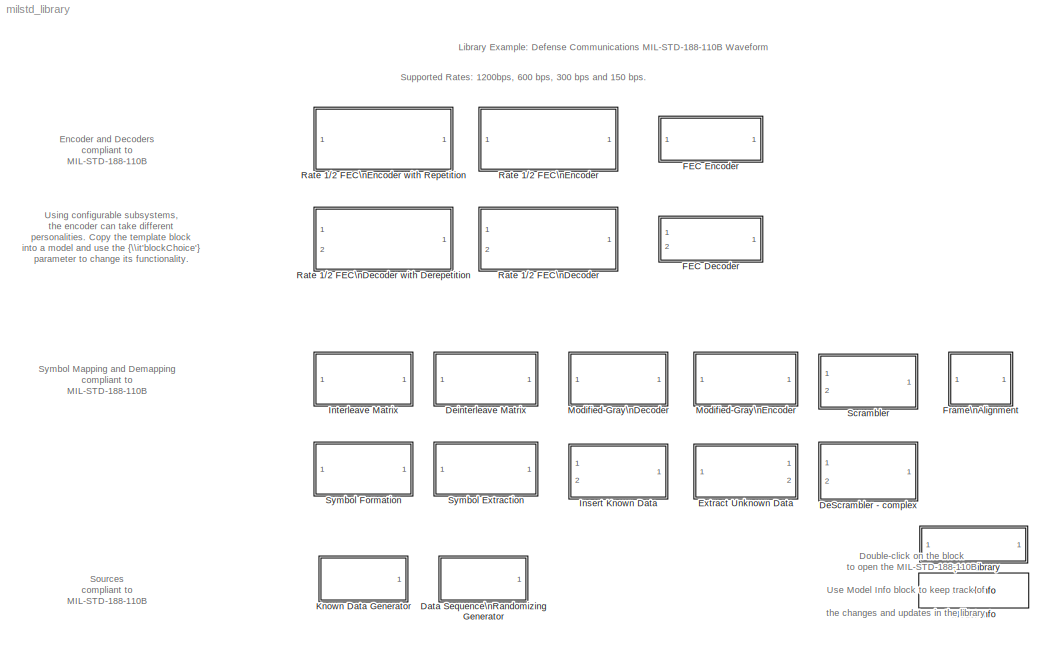
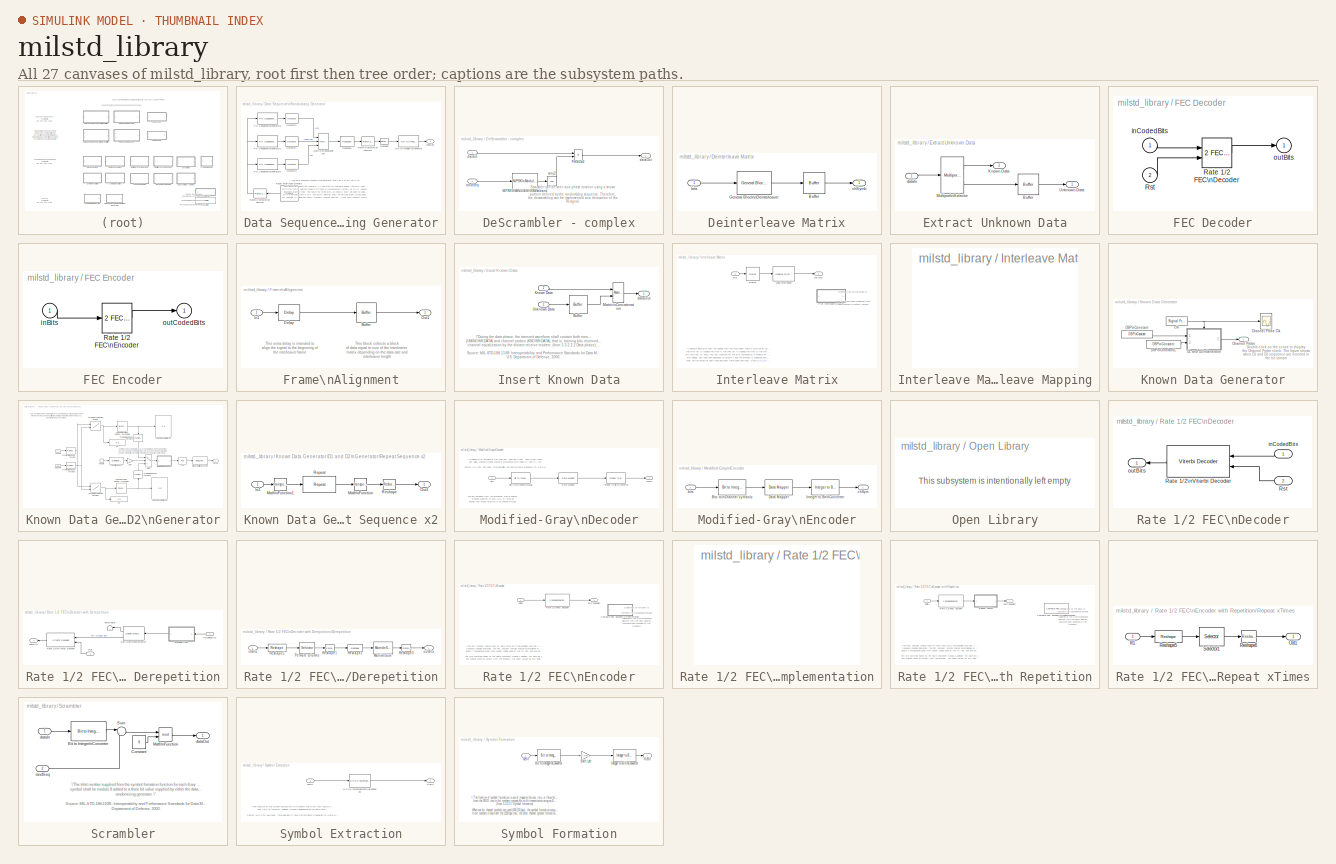
[diagram: thumbnail index - all 27 canvases of the model, root first then tree order]
MODEL milstd_library
KIND library
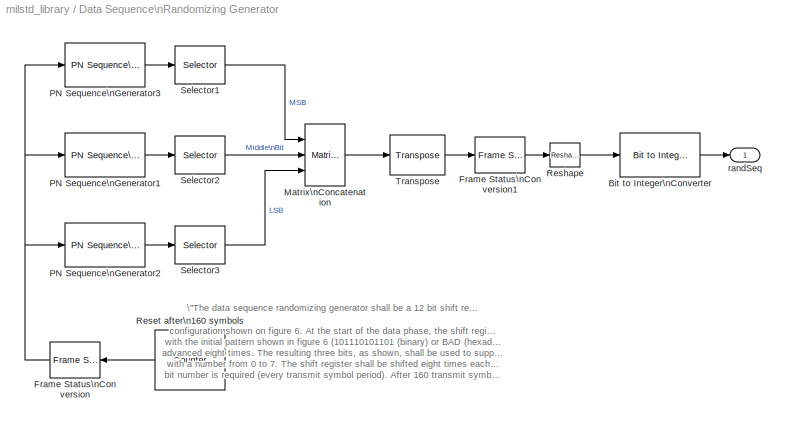
BLOCK [SubSystem] Data Sequence\nRandomizing Generator
  MinAlgLoopOccurrences = off
  Ports = [0, 1]
  PropExecContextAcrossSSBoundary = on
  RTWSystemCode = Auto
  TreatAsAtomicUnit = off
BLOCK [Reference] Data Sequence\nRandomizing Generator/Bit to Integer\nConverter  REF=commutil2/Bit to Integer\nConverter
  Ports = [1, 1]
  SourceBlock = commutil2/Bit to Integer\nConverter
  SourceType = Bit to Integer Converter
  nbits = 3
BLOCK [Reference] Data Sequence\nRandomizing Generator/Frame Status\nConversion  REF=dspsigattribs/Frame Status\nConversion
  Ports = [1, 1]
  ShowPortLabels = off
  SourceBlock = dspsigattribs/Frame Status\nConversion
  SourceType = Frame Status Conversion
  growRefPort = off
  outframe = Frame-based
BLOCK [Reference] Data Sequence\nRandomizing Generator/Frame Status\nConversion1  REF=dspsigattribs/Frame Status\nConversion
  Ports = [1, 1]
  ShowPortLabels = off
  SourceBlock = dspsigattribs/Frame Status\nConversion
  SourceType = Frame Status Conversion
  growRefPort = off
  outframe = Frame-based
BLOCK [Reference] Data Sequence\nRandomizing Generator/Matrix\nConcatenation  REF=simulink/Math\nOperations/Matrix\nConcatenation
  Ports = [3, 1]
  SourceBlock = simulink/Math\nOperations/Matrix\nConcatenation
  SourceType = Matrix Concatenation
  catMethod = Horizontal
  numInports = 3
BLOCK [Reference] Data Sequence\nRandomizing Generator/PN Sequence\nGenerator1  REF=commseqgen2/PN Sequence\nGenerator
  Ports = [1, 1]
  SourceBlock = commseqgen2/PN Sequence\nGenerator
  SourceType = PN Sequence Generator
  Ts = 1/2400/8
  frameBased = on
  ini_sta = [zeros(1,11) 1]
  poly = [12 6 4 1 0]
  reset = on
  sampPerFrame = 40*8
  shift = 3664
BLOCK [Reference] Data Sequence\nRandomizing Generator/PN Sequence\nGenerator2  REF=commseqgen2/PN Sequence\nGenerator
  Ports = [1, 1]
  SourceBlock = commseqgen2/PN Sequence\nGenerator
  SourceType = PN Sequence Generator
  Ts = 1/2400/8
  frameBased = on
  ini_sta = [zeros(1,11) 1]
  poly = [12 6 4 1 0]
  reset = on
  sampPerFrame = 40*8
  shift = 1506
BLOCK [Reference] Data Sequence\nRandomizing Generator/PN Sequence\nGenerator3  REF=commseqgen2/PN Sequence\nGenerator
  Ports = [1, 1]
  SourceBlock = commseqgen2/PN Sequence\nGenerator
  SourceType = PN Sequence Generator
  Ts = 1/2400/8
  frameBased = on
  ini_sta = [zeros(1,11) 1]
  poly = [12 6 4 1 0]
  reset = on
  sampPerFrame = 40*8
  shift = 3663
BLOCK [Reference] Data Sequence\nRandomizing Generator/Reset after\n160 symbols  REF=dspswit3/Counter
  CntDtype = double
  CountEvent = Free running
  CounterSize = User defined
  Direction = Down
  HitDtype = Logical
  HitValue = 1
  InitialCount = 160/40+1
  MaxCount = 160/40+1
  Output = Hit
  Ports = [0, 1]
  ResetInput = off
  SamplesPerFrame = 1
  SourceBlock = dspswit3/Counter
  SourceType = Counter
  Ts = 40/2400
BLOCK [Reference] Data Sequence\nRandomizing Generator/Reshape  REF=simulink/Math\nOperations/Reshape
  OutputDimensionality = Column vector
  OutputDimensions = [1,1]
  Ports = [1, 1]
  SourceBlock = simulink/Math\nOperations/Reshape
  SourceType = Reshape
BLOCK [Selector] Data Sequence\nRandomizing Generator/Selector1
  Elements = [8:8:40*8]
  InputPortWidth = 40*8
  Ports = [1, 1]
BLOCK [Selector] Data Sequence\nRandomizing Generator/Selector2
  Elements = [8:8:40*8]
  InputPortWidth = 40*8
  Ports = [1, 1]
BLOCK [Selector] Data Sequence\nRandomizing Generator/Selector3
  Elements = [8:8:40*8]
  InputPortWidth = 40*8
  Ports = [1, 1]
BLOCK [Reference] Data Sequence\nRandomizing Generator/Transpose  REF=dspmtrx3/Transpose
  Hermitian = off
  Ports = [1, 1]
  SourceBlock = dspmtrx3/Transpose
  SourceType = Transpose
  overflowFlag = on
BLOCK [Outport] Data Sequence\nRandomizing Generator/randSeq
  BusOutputAsStruct = off
  IconDisplay = Port number
BLOCK [SubSystem] DeScrambler - complex
  MaskDisplay = disp('Descrambler\\n')\nport_label('input',1,'');\nport_label('input',2,'rndSeq');
  MaskIconFrame = on
  MaskIconOpaque = on
  MaskIconRotate = none
  MaskIconUnits = autoscale
  MinAlgLoopOccurrences = off
  Ports = [2, 1]
  PropExecContextAcrossSSBoundary = on
  RTWSystemCode = Auto
  TreatAsAtomicUnit = off
BLOCK [Reference] DeScrambler - complex/M-PSK\nModulator\nBaseband  REF=commdigbbndpm2/M-PSK\nModulator\nBaseband
  Enc = Binary
  InType = Integer
  M = 8
  Ph = 0
  Ports = [1, 1]
  SourceBlock = commdigbbndpm2/M-PSK\nModulator\nBaseband
  SourceType = M-PSK Modulator Baseband
  numSamp = 1
BLOCK [Product] DeScrambler - complex/Product2
  Ports = [2, 1]
  RndMeth = Floor
BLOCK [Math] DeScrambler - complex/conj2
  Operator = conj
  Ports = [1, 1]
BLOCK [Inport] DeScrambler - complex/dataIn
  IconDisplay = Port number
  LatchInput = off
BLOCK [Outport] DeScrambler - complex/dataOut
  BusOutputAsStruct = off
  IconDisplay = Port number
BLOCK [Inport] DeScrambler - complex/randSeq
  IconDisplay = Port number
  LatchInput = off
  Port = 2
BLOCK [SubSystem] Deinterleave Matrix
  MaskDisplay = disp('Deinterleave\\nMatrix')
  MaskIconFrame = on
  MaskIconOpaque = on
  MaskIconRotate = none
  MaskIconUnits = autoscale
  MinAlgLoopOccurrences = off
  Ports = [1, 1]
  PropExecContextAcrossSSBoundary = on
  RTWSystemCode = Auto
  TreatAsAtomicUnit = off
BLOCK [Reference] Deinterleave Matrix/Buffer  REF=dspbuff3/Buffer
  N = milstd.rate*milstd.repFactor*2*0.2
  Ports = [1, 1]
  SourceBlock = dspbuff3/Buffer
  SourceType = Buffer
  V = 0
  ic = 0
BLOCK [Reference] Deinterleave Matrix/General Block\nDeinterleaver  REF=commblkintrlv2/General Block\nDeinterleaver
  Ports = [1, 1]
  SourceBlock = commblkintrlv2/General Block\nDeinterleaver
  SourceType = General Block Deinterleaver
  elements = milstd.interTable %Column vector
BLOCK [Inport] Deinterleave Matrix/bits
  IconDisplay = Port number
  LatchInput = off
BLOCK [Outport] Deinterleave Matrix/chSymb
  BusOutputAsStruct = off
  IconDisplay = Port number
BLOCK [SubSystem] Extract Unknown Data
  MaskDisplay = disp('Extract\\nUnknown Data')
  MaskIconFrame = on
  MaskIconOpaque = on
  MaskIconRotate = none
  MaskIconUnits = autoscale
  MinAlgLoopOccurrences = off
  Ports = [1, 2]
  PropExecContextAcrossSSBoundary = on
  RTWSystemCode = Auto
  TreatAsAtomicUnit = off
BLOCK [Reference] Extract Unknown Data/Buffer  REF=dspbuff3/Buffer
  N = milstd.rate*2*milstd.interl*milstd.repFactor*3/milstd.bitsToSym
  Ports = [1, 1]
  SourceBlock = dspbuff3/Buffer
  SourceType = Buffer
  V = 0
  ic = 0
BLOCK [Outport] Extract Unknown Data/Known Data
  BusOutputAsStruct = off
  IconDisplay = Port number
  Port = 2
BLOCK [Reference] Extract Unknown Data/Multiport\nSelector  REF=dspindex/Multiport\nSelector
  Ports = [1, 2]
  SourceBlock = dspindex/Multiport\nSelector
  SourceType = Multiport Selector
  idxCellArray = { [1:60],[61:120]}
  idxErrMode = Clip Index
  rowsOrCols = Rows
BLOCK [Outport] Extract Unknown Data/Unknown Data
  BusOutputAsStruct = off
  IconDisplay = Port number
BLOCK [Inport] Extract Unknown Data/dataIn
  IconDisplay = Port number
  LatchInput = off
BLOCK [SubSystem] FEC Decoder
  BlockChoice = Rate 1/2 FEC Decoder
  MemberBlocks = Rate 1/2 FEC Decoder,Rate 1/2 FEC Decoder with Derepetition
  MinAlgLoopOccurrences = off
  Ports = [2, 1]
  PropExecContextAcrossSSBoundary = on
  RTWSystemCode = Auto
  ShowPortLabels = off
  TemplateBlock = self
  TreatAsAtomicUnit = off
BLOCK [Reference] FEC Decoder/Rate 1//2 FEC\nDecoder  REF=milstd_library/Rate 1//2 FEC\nDecoder  (lib defined in mdl_f392efc64685)
  Ports = [2, 1]
  SourceBlock = milstd_library/Rate 1//2 FEC\nDecoder
  SourceType = Unknown
BLOCK [Inport] FEC Decoder/Rst
  IconDisplay = Port number
  LatchInput = off
  Port = 2
BLOCK [Inport] FEC Decoder/inCodedBits
  IconDisplay = Port number
  LatchInput = off
BLOCK [Outport] FEC Decoder/outBits
  BusOutputAsStruct = off
  IconDisplay = Port number
BLOCK [SubSystem] FEC Encoder
  BlockChoice = Rate 1/2 FEC Encoder
  MemberBlocks = Rate 1/2 FEC Encoder,Rate 1/2 FEC Encoder with Repetition
  MinAlgLoopOccurrences = off
  Ports = [1, 1]
  PropExecContextAcrossSSBoundary = on
  RTWSystemCode = Auto
  ShowPortLabels = off
  TemplateBlock = self
  TreatAsAtomicUnit = off
BLOCK [Reference] FEC Encoder/Rate 1//2 FEC\nEncoder  REF=milstd_library/Rate 1//2 FEC\nEncoder  (lib defined in mdl_f392efc64685)
  Ports = [1, 1]
  SourceBlock = milstd_library/Rate 1//2 FEC\nEncoder
  SourceType = Unknown
BLOCK [Inport] FEC Encoder/inBits
  IconDisplay = Port number
  LatchInput = off
BLOCK [Outport] FEC Encoder/outCodedBits
  BusOutputAsStruct = off
  IconDisplay = Port number
BLOCK [SubSystem] Frame\nAlignment
  MaskDisplay = disp('Frame\\nAlignment')
  MaskIconFrame = on
  MaskIconOpaque = on
  MaskIconRotate = none
  MaskIconUnits = autoscale
  MinAlgLoopOccurrences = off
  Ports = [1, 1]
  PropExecContextAcrossSSBoundary = on
  RTWSystemCode = Auto
  TreatAsAtomicUnit = off
BLOCK [Reference] Frame\nAlignment/Buffer  REF=dspbuff3/Buffer
  N = 1200*milstd.interl
  Ports = [1, 1]
  SourceBlock = dspbuff3/Buffer
  SourceType = Buffer
  V = 0
  ic = 0
BLOCK [Reference] Frame\nAlignment/Delay  REF=dspsigops/Delay
  Ports = [1, 1]
  SourceBlock = dspsigops/Delay
  SourceType = Delay
  delay = 1200*milstd.interl-20
  dif_ic_for_ch = off
  dif_ic_for_dly = off
  dly_unit = Samples
  ic = 0
  ic_detail = off
  reset_popup = None
BLOCK [Inport] Frame\nAlignment/In1
  IconDisplay = Port number
  LatchInput = off
BLOCK [Outport] Frame\nAlignment/Out1
  BusOutputAsStruct = off
  IconDisplay = Port number
BLOCK [SubSystem] Insert Known Data
  MaskDisplay = disp('Insert\\nKnown Data')
  MaskIconFrame = on
  MaskIconOpaque = on
  MaskIconRotate = none
  MaskIconUnits = autoscale
  MinAlgLoopOccurrences = off
  Ports = [2, 1]
  PropExecContextAcrossSSBoundary = on
  RTWSystemCode = Auto
  TreatAsAtomicUnit = off
BLOCK [Reference] Insert Known Data/Buffer  REF=dspbuff3/Buffer
  N = 20*3
  Ports = [1, 1]
  SourceBlock = dspbuff3/Buffer
  SourceType = Buffer
  V = 0
  ic = 0
BLOCK [Inport] Insert Known Data/Known Data
  IconDisplay = Port number
  LatchInput = off
  Port = 2
BLOCK [Reference] Insert Known Data/Matrix\nConcatenation  REF=simulink/Math\nOperations/Matrix\nConcatenation
  Ports = [2, 1]
  SourceBlock = simulink/Math\nOperations/Matrix\nConcatenation
  SourceType = Matrix Concatenation
  catMethod = Vertical
  numInports = 2
BLOCK [Inport] Insert Known Data/Unknown Data
  IconDisplay = Port number
  LatchInput = off
BLOCK [Outport] Insert Known Data/dataOut
  BusOutputAsStruct = off
  IconDisplay = Port number
BLOCK [SubSystem] Interleave Matrix
  MaskDisplay = disp('Interleave\\nMatrix')
  MaskIconFrame = on
  MaskIconOpaque = on
  MaskIconRotate = none
  MaskIconUnits = autoscale
  MinAlgLoopOccurrences = off
  Ports = [1, 1]
  PropExecContextAcrossSSBoundary = on
  RTWSystemCode = Auto
  TreatAsAtomicUnit = off
BLOCK [Reference] Interleave Matrix/Buffer  REF=dspbuff3/Buffer
  N = milstd.rate*milstd.interl*milstd.repFactor*2 % x2 because of coding rate
  Ports = [1, 1]
  SourceBlock = dspbuff3/Buffer
  SourceType = Buffer
  V = 0
  ic = 0
BLOCK [Reference] Interleave Matrix/Long Interleaver  REF=commblkintrlv2/General Block\nInterleaver
  Ports = [1, 1]
  SourceBlock = commblkintrlv2/General Block\nInterleaver
  SourceType = General Block Interleaver
  elements = milstd.interTable %Column vector
BLOCK [SubSystem] Interleave Matrix/Plot Interleave Mapping
  MaskDisplay = disp('Interleave\\nMapping')
  MaskIconFrame = on
  MaskIconOpaque = on
  MaskIconRotate = none
  MaskIconUnits = autoscale
  MinAlgLoopOccurrences = off
  OpenFcn = figure;                                          \nnumRow = 40;                                     \nnumCol = length(milstd.interTable)/numRow;       \nplot([0:numRow*numCol-1],milstd.interTable,'b.');\naxis([0 numRow*numCol-1 0 numRow*numCol-1]);     \ntitle('Interleaver Mapping');                    \nxlabel('Input index');                           \nylabel('Output index');
  Ports = []
  PropExecContextAcrossSSBoundary = on
  RTWSystemCode = Auto
  TreatAsAtomicUnit = off
BLOCK [Inport] Interleave Matrix/bits
  IconDisplay = Port number
  LatchInput = off
BLOCK [Outport] Interleave Matrix/chSymb
  BusOutputAsStruct = off
  IconDisplay = Port number
BLOCK [SubSystem] Known Data Generator
  MinAlgLoopOccurrences = off
  Ports = [0, 1]
  PropExecContextAcrossSSBoundary = on
  RTWSystemCode = Auto
  TreatAsAtomicUnit = off
BLOCK [Outport] Known Data Generator/Channel Probe
  BusOutputAsStruct = off
  IconDisplay = Port number
BLOCK [Scope] Known Data Generator/Channel Probe Clk
  DataFormat = Structure
  NumInputPorts = 1
  Ports = [1]
  TimeRange = 19.2
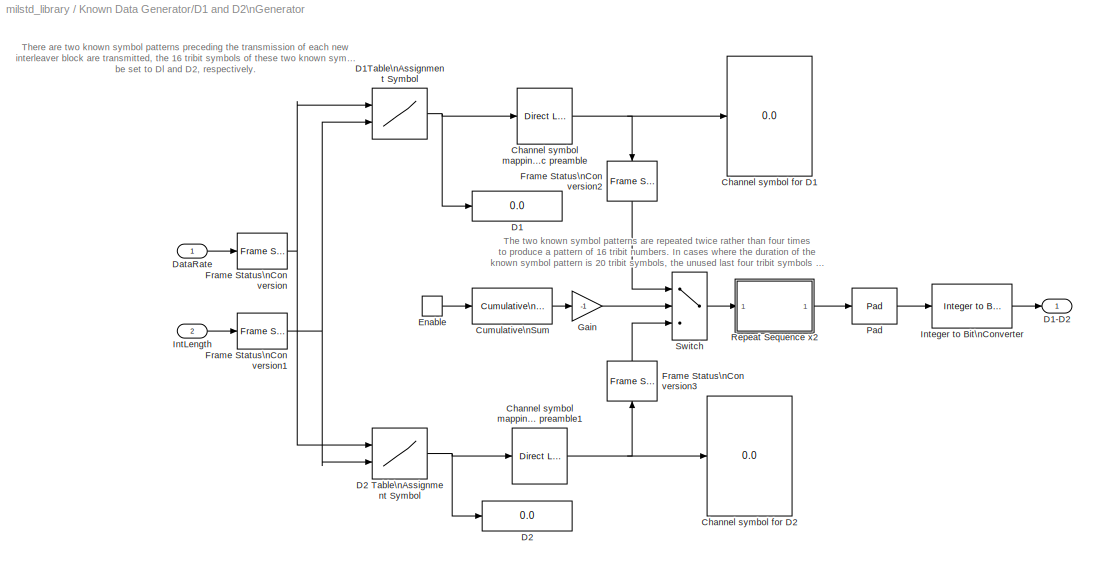
BLOCK [SubSystem] Known Data Generator/D1 and D2\nGenerator
  MaskIconFrame = on
  MaskIconOpaque = on
  MaskIconRotate = none
  MaskIconUnits = autoscale
  MaskInitialization = % Loads lookup table for D1 and D2 bits in preamble sequence\n% according to MIL-STD-188-110B TABLE XV\n% D1 Lookup table:\nD1Table = ones(7,2);\nD1Table(:,1) = [ 7 6 6 6 6 7 7]';\nD1Table(:,2) = [ 0 4 4 4 4 5 5]';\n\n% D1 Lookup table:\nD2Table = ones(7,2);\nD2Table(:,1) = [6 4 5 6 7 4 5]';\nD2Table(:,2) = [0 4 5 6 7 4 5]';\n\n
  MinAlgLoopOccurrences = off
  Ports = [2, 1, 1]
  PropExecContextAcrossSSBoundary = on
  RTWSystemCode = Auto
  TreatAsAtomicUnit = off
BLOCK [Display] Known Data Generator/D1 and D2\nGenerator/Channel symbol for D1
  Decimation = 1
  Ports = [1]
BLOCK [Display] Known Data Generator/D1 and D2\nGenerator/Channel symbol for D2
  Decimation = 1
  Ports = [1]
BLOCK [Reference] Known Data Generator/D1 and D2\nGenerator/Channel symbol mapping\nfor sync preamble  REF=simulink/Look-Up\nTables/Direct Look-Up\nTable (n-D)
  Ports = [1, 1]
  SourceBlock = simulink/Look-Up\nTables/Direct Look-Up\nTable (n-D)
  SourceType = LookupNDDirect
  clipFlag = Error
  explicitNumDims = 1
  maskTabDims = 2
  mxTable = milstd.chSymMapping
  outDims = Column
  tabIsInput = off
BLOCK [Reference] Known Data Generator/D1 and D2\nGenerator/Channel symbol mapping\nfor sync preamble1  REF=simulink/Look-Up\nTables/Direct Look-Up\nTable (n-D)
  Ports = [1, 1]
  SourceBlock = simulink/Look-Up\nTables/Direct Look-Up\nTable (n-D)
  SourceType = LookupNDDirect
  clipFlag = Warning
  explicitNumDims = 1
  maskTabDims = 2
  mxTable = milstd.chSymMapping
  outDims = Column
  tabIsInput = off
BLOCK [Reference] Known Data Generator/D1 and D2\nGenerator/Cumulative\nSum  REF=dspmathops/Cumulative\nSum
  Ports = [1, 1]
  SourceBlock = dspmathops/Cumulative\nSum
  SourceType = Cumulative Sum
  dim = Channels (running sum)
  reset_popup = None
BLOCK [Display] Known Data Generator/D1 and D2\nGenerator/D1
  Decimation = 1
  Ports = [1]
BLOCK [Outport] Known Data Generator/D1 and D2\nGenerator/D1-D2
  BusOutputAsStruct = off
  IconDisplay = Port number
  InitialOutput = 0
  OutputWhenDisabled = reset
BLOCK [Lookup2D] Known Data Generator/D1 and D2\nGenerator/D1Table\nAssignment Symbol
  ColumnIndex = [1:2]
  DialogController = Simulink.DDGSource
  InputSameDT = off
  OutputValues = milstd.D1Table
  RowIndex = [1:7]
BLOCK [Display] Known Data Generator/D1 and D2\nGenerator/D2
  Decimation = 1
  Ports = [1]
BLOCK [Lookup2D] Known Data Generator/D1 and D2\nGenerator/D2 Table\nAssignment Symbol
  ColumnIndex = [1:2]
  DialogController = Simulink.DDGSource
  InputSameDT = off
  OutputValues = milstd.D2Table
  RowIndex = [1:7]
BLOCK [Inport] Known Data Generator/D1 and D2\nGenerator/DataRate
  IconDisplay = Port number
  LatchInput = off
BLOCK [EnablePort] Known Data Generator/D1 and D2\nGenerator/Enable
  Ports = [0, 1]
  ShowOutputPort = on
  StatesWhenEnabling = reset
BLOCK [Reference] Known Data Generator/D1 and D2\nGenerator/Frame Status\nConversion  REF=dspsigattribs/Frame Status\nConversion
  Ports = [1, 1]
  SourceBlock = dspsigattribs/Frame Status\nConversion
  SourceType = Frame Status Conversion
  growRefPort = off
  outframe = Sample-based
BLOCK [Reference] Known Data Generator/D1 and D2\nGenerator/Frame Status\nConversion1  REF=dspsigattribs/Frame Status\nConversion
  Ports = [1, 1]
  SourceBlock = dspsigattribs/Frame Status\nConversion
  SourceType = Frame Status Conversion
  growRefPort = off
  outframe = Sample-based
BLOCK [Reference] Known Data Generator/D1 and D2\nGenerator/Frame Status\nConversion2  REF=dspsigattribs/Frame Status\nConversion
  Ports = [1, 1]
  SourceBlock = dspsigattribs/Frame Status\nConversion
  SourceType = Frame Status Conversion
  growRefPort = off
  outframe = Frame-based
BLOCK [Reference] Known Data Generator/D1 and D2\nGenerator/Frame Status\nConversion3  REF=dspsigattribs/Frame Status\nConversion
  Ports = [1, 1]
  SourceBlock = dspsigattribs/Frame Status\nConversion
  SourceType = Frame Status Conversion
  growRefPort = off
  outframe = Frame-based
BLOCK [Gain] Known Data Generator/D1 and D2\nGenerator/Gain
  Gain = -1
BLOCK [Inport] Known Data Generator/D1 and D2\nGenerator/IntLength
  IconDisplay = Port number
  LatchInput = off
  Port = 2
BLOCK [Reference] Known Data Generator/D1 and D2\nGenerator/Integer to Bit\nConverter  REF=commutil2/Integer to Bit\nConverter
  Ports = [1, 1]
  SourceBlock = commutil2/Integer to Bit\nConverter
  SourceType = Integer to Bit Converter
  nbits = 3
BLOCK [Reference] Known Data Generator/D1 and D2\nGenerator/Pad  REF=dspsigops/Pad
  Ports = [1, 1]
  SourceBlock = dspsigops/Pad
  SourceType = Pad
  numOutCols = 1
  numOutRows = 20
  padAlong = Columns
  padNumOutColsSpecMethod = User-specified
  padNumOutRowsSpecMethod = User-specified
  padSigAt = End
  padVal = 0
  trunc_flag = None
BLOCK [SubSystem] Known Data Generator/D1 and D2\nGenerator/Repeat Sequence x2
  MaskDisplay = disp('Repeat\\nSequence x2')
  MaskIconFrame = on
  MaskIconOpaque = on
  MaskIconRotate = none
  MaskIconUnits = autoscale
  MinAlgLoopOccurrences = off
  Ports = [1, 1]
  PropExecContextAcrossSSBoundary = on
  RTWSystemCode = Auto
  TreatAsAtomicUnit = off
BLOCK [Inport] Known Data Generator/D1 and D2\nGenerator/Repeat Sequence x2/In1
  IconDisplay = Port number
  LatchInput = off
BLOCK [Math] Known Data Generator/D1 and D2\nGenerator/Repeat Sequence x2/Math\nFunction
  Operator = transpose
  Ports = [1, 1]
BLOCK [Math] Known Data Generator/D1 and D2\nGenerator/Repeat Sequence x2/Math\nFunction1
  Operator = transpose
  Ports = [1, 1]
BLOCK [Outport] Known Data Generator/D1 and D2\nGenerator/Repeat Sequence x2/Out1
  BusOutputAsStruct = off
  IconDisplay = Port number
BLOCK [Reference] Known Data Generator/D1 and D2\nGenerator/Repeat Sequence x2/Repeat  REF=dspsigops/Repeat
  N = 2
  Ports = [1, 1]
  SourceBlock = dspsigops/Repeat
  SourceType = Repeat
  ic = 0
  mode = Maintain input frame rate
BLOCK [Reference] Known Data Generator/D1 and D2\nGenerator/Repeat Sequence x2/Reshape  REF=simulink/Math\nOperations/Reshape
  OutputDimensionality = Column vector
  OutputDimensions = [1,1]
  Ports = [1, 1]
  SourceBlock = simulink/Math\nOperations/Reshape
  SourceType = Reshape
BLOCK [Switch] Known Data Generator/D1 and D2\nGenerator/Switch
  InputSameDT = off
  Threshold = -1.5
BLOCK [Reference] Known Data Generator/DSP\nConstant  REF=dspsrcs4/DSP\nConstant
  FramebasedOutput = -inf
  InterpretAs1D = -inf
  Ports = [0, 1]
  SampleMode = Discrete
  ShowPortLabels = on
  SourceBlock = dspsrcs4/DSP\nConstant
  SourceType = DSP Constant
  Ts = -inf
  Value = milstd.idxRate
  additionalParams = off
  allowOverrides = on
  continuousOutput = Sample-based
  dataType = Inherit from 'Constant value'
  discreteOutput = Frame-based
  fracBitsMode = Best precision
  framePeriod = 20/1200
  numFracBits = 15
  sampTime = 1
  udDataType = sfix(16)
  wordLen = 16
BLOCK [Reference] Known Data Generator/DSP\nConstant1  REF=dspsrcs4/DSP\nConstant
  FramebasedOutput = -inf
  InterpretAs1D = -inf
  Ports = [0, 1]
  SampleMode = Discrete
  ShowPortLabels = on
  SourceBlock = dspsrcs4/DSP\nConstant
  SourceType = DSP Constant
  Ts = -inf
  Value = milstd.idxInterl
  additionalParams = off
  allowOverrides = on
  continuousOutput = Sample-based
  dataType = Inherit from 'Constant value'
  discreteOutput = Frame-based
  fracBitsMode = Best precision
  framePeriod = 20/1200
  numFracBits = 15
  sampTime = 1
  udDataType = sfix(16)
  wordLen = 16
BLOCK [Reference] Known Data Generator/clk  REF=dspsrcs4/Signal From\nWorkspace
  OutputAfterFinalValue = Cyclic repetition
  Ports = [0, 1]
  ShowPortLabels = on
  SourceBlock = dspsrcs4/Signal From\nWorkspace
  SourceType = Signal From Workspace
  Ts = 20/1200
  X = [1 1 zeros(1,1200*milstd.rate/20-2)]  %Channel rate is equal to 1200
  nsamps = 1
BLOCK [Reference] Model Info  REF=simulink/Model-Wide\nUtilities/Model Info
  BlockCM = None
  DisplayStringWithTags = Model Info\nModel version: %<ModelVersion>
  Frame = on
  HorizontalTextAlignment = Center
  InitialBlockCM = None
  LeftAlignmentValue = 0.5
  MaskDisplayString = Model Info\\nModel version: 2.84
  Ports = []
  ShowPortLabels = on
  SourceBlock = simulink/Model-Wide\nUtilities/Model Info
  SourceBlockDiagram = milstd_library
  SourceType = CMBlock
  TagMaxNumber = 20
BLOCK [SubSystem] Modified-Gray\nDecoder
  MaskDisplay = disp('Bits to\\nChannel\\nSymbols')
  MaskIconFrame = on
  MaskIconOpaque = on
  MaskIconRotate = none
  MaskIconUnits = autoscale
  MinAlgLoopOccurrences = off
  Ports = [1, 1]
  PropExecContextAcrossSSBoundary = on
  RTWSystemCode = Auto
  TreatAsAtomicUnit = off
BLOCK [Reference] Modified-Gray\nDecoder/Bits to\nChannel symbols  REF=commutil2/Bit to Integer\nConverter
  Ports = [1, 1]
  SourceBlock = commutil2/Bit to Integer\nConverter
  SourceType = Bit to Integer Converter
  nbits = milstd.bitsToSym
BLOCK [Reference] Modified-Gray\nDecoder/Data Mapper  REF=commutil2/Data Mapper
  M = 2^milstd.bitsToSym
  MapMode = Binary to Gray
  MapVec = [0 1 3 2]
  Ports = [1, 1]
  ShowPortLabels = on
  SourceBlock = commutil2/Data Mapper
  SourceType = Data Mapper
BLOCK [Reference] Modified-Gray\nDecoder/Integer to Bit\nConverter  REF=commutil2/Integer to Bit\nConverter
  Ports = [1, 1]
  SourceBlock = commutil2/Integer to Bit\nConverter
  SourceType = Integer to Bit Converter
  nbits = milstd.bitsToSym
BLOCK [Inport] Modified-Gray\nDecoder/bits
  IconDisplay = Port number
  LatchInput = off
BLOCK [Outport] Modified-Gray\nDecoder/chSym
  BusOutputAsStruct = off
  IconDisplay = Port number
BLOCK [SubSystem] Modified-Gray\nEncoder
  MaskDisplay = disp('Channel\\nSymbols\\nto Bits')
  MaskIconFrame = on
  MaskIconOpaque = on
  MaskIconRotate = none
  MaskIconUnits = autoscale
  MaskType = Modified-Gray Encoder
  MinAlgLoopOccurrences = off
  Ports = [1, 1]
  PropExecContextAcrossSSBoundary = on
  RTWSystemCode = Auto
  TreatAsAtomicUnit = off
BLOCK [Reference] Modified-Gray\nEncoder/Bits to\nChannel symbols  REF=commutil2/Bit to Integer\nConverter
  Ports = [1, 1]
  SourceBlock = commutil2/Bit to Integer\nConverter
  SourceType = Bit to Integer Converter
  nbits = milstd.bitsToSym
BLOCK [Reference] Modified-Gray\nEncoder/Data Mapper  REF=commutil2/Data Mapper
  M = 2^milstd.bitsToSym
  MapMode = Gray to Binary
  MapVec = [0 1 3 2]
  Ports = [1, 1]
  ShowPortLabels = on
  SourceBlock = commutil2/Data Mapper
  SourceType = Data Mapper
BLOCK [Reference] Modified-Gray\nEncoder/Integer to Bit\nConverter  REF=commutil2/Integer to Bit\nConverter
  Ports = [1, 1]
  SourceBlock = commutil2/Integer to Bit\nConverter
  SourceType = Integer to Bit Converter
  nbits = milstd.bitsToSym
BLOCK [Inport] Modified-Gray\nEncoder/bits
  IconDisplay = Port number
  LatchInput = off
BLOCK [Outport] Modified-Gray\nEncoder/chSym
  BusOutputAsStruct = off
  IconDisplay = Port number
BLOCK [SubSystem] Open Library
  MaskDisplay = disp('MIL-STD-188-110B\\nModel')
  MaskIconFrame = on
  MaskIconOpaque = on
  MaskIconRotate = none
  MaskIconUnits = autoscale
  MinAlgLoopOccurrences = off
  OpenFcn = open('milstd_188110bmodel.mdl');
  Ports = []
  PropExecContextAcrossSSBoundary = on
  RTWSystemCode = Auto
  ShowPortLabels = off
  TreatAsAtomicUnit = off
BLOCK [SubSystem] Rate 1//2 FEC\nDecoder
  MaskDisplay = disp('Rate 1/2\\nFEC Decoding:\\nViterbi Decoder');
  MaskIconFrame = on
  MaskIconOpaque = on
  MaskIconRotate = none
  MaskIconUnits = autoscale
  MinAlgLoopOccurrences = off
  Ports = [2, 1]
  PropExecContextAcrossSSBoundary = on
  RTWSystemCode = Auto
  TreatAsAtomicUnit = off
BLOCK [SubSystem] Rate 1//2 FEC\nDecoder with Derepetition
  MaskDisplay = disp('Rate 1/2\\nFEC Decoding:\\nViterbi Decoder\\nwith Derepetition');
  MaskIconFrame = on
  MaskIconOpaque = on
  MaskIconRotate = none
  MaskIconUnits = autoscale
  MinAlgLoopOccurrences = off
  Ports = [2, 1]
  PropExecContextAcrossSSBoundary = on
  RTWSystemCode = Auto
  TreatAsAtomicUnit = off
BLOCK [SubSystem] Rate 1//2 FEC\nDecoder with Derepetition/Derepetition
  MaskDisplay = disp('Derepetition')
  MaskIconFrame = on
  MaskIconOpaque = on
  MaskIconRotate = none
  MaskIconUnits = autoscale
  MinAlgLoopOccurrences = off
  Ports = [1, 1]
  PropExecContextAcrossSSBoundary = on
  RTWSystemCode = Auto
  TreatAsAtomicUnit = off
BLOCK [Reference] Rate 1//2 FEC\nDecoder with Derepetition/Derepetition/Matrix\nSum  REF=dspmtrx3/Matrix\nSum
  Dim = Columns
  Ports = [1, 1]
  SourceBlock = dspmtrx3/Matrix\nSum
  SourceType = Matrix Sum
BLOCK [Selector] Rate 1//2 FEC\nDecoder with Derepetition/Derepetition/Permute columns
  Columns = -1
  Elements = [1 3]
  InputPortWidth = 3
  InputType = Matrix
  Ports = [1, 1]
  Rows = [[1:2:2*milstd.repFactor] [2:2:2*milstd.repFactor]]
BLOCK [Reference] Rate 1//2 FEC\nDecoder with Derepetition/Derepetition/Reshape1  REF=simulink/Math\nOperations/Reshape
  OutputDimensionality = Column vector
  OutputDimensions = [2*milstd.repFactor,milstd.rate*0.2]
  Ports = [1, 1]
  SourceBlock = simulink/Math\nOperations/Reshape
  SourceType = Reshape
BLOCK [Reference] Rate 1//2 FEC\nDecoder with Derepetition/Derepetition/Reshape2  REF=simulink/Math\nOperations/Reshape
  OutputDimensionality = Customize
  OutputDimensions = [milstd.repFactor,milstd.rate*0.2*2]
  Ports = [1, 1]
  SourceBlock = simulink/Math\nOperations/Reshape
  SourceType = Reshape
BLOCK [Reference] Rate 1//2 FEC\nDecoder with Derepetition/Derepetition/Reshape3  REF=simulink/Math\nOperations/Reshape
  OutputDimensionality = Column vector
  OutputDimensions = [2*milstd.repFactor,milstd.rate*0.2]
  Ports = [1, 1]
  SourceBlock = simulink/Math\nOperations/Reshape
  SourceType = Reshape
BLOCK [Reference] Rate 1//2 FEC\nDecoder with Derepetition/Derepetition/Reshape5  REF=simulink/Math\nOperations/Reshape
  OutputDimensionality = Customize
  OutputDimensions = [2*milstd.repFactor,milstd.rate*0.2]
  Ports = [1, 1]
  SourceBlock = simulink/Math\nOperations/Reshape
  SourceType = Reshape
BLOCK [Inport] Rate 1//2 FEC\nDecoder with Derepetition/Derepetition/inBits
  IconDisplay = Port number
  LatchInput = off
BLOCK [Outport] Rate 1//2 FEC\nDecoder with Derepetition/Derepetition/outBits
  BusOutputAsStruct = off
  IconDisplay = Port number
BLOCK [Reference] Rate 1//2 FEC\nDecoder with Derepetition/Rate 1//2\nViterbi Decoder  REF=commcnvcod2/Viterbi Decoder
  Ports = [2, 1]
  SourceBlock = commcnvcod2/Viterbi Decoder
  SourceType = Viterbi Decoder
  dectype = Soft Decision
  nsdecb = 2
  opmode = Continuous
  reset = on
  tbdepth = 34
  trellis = poly2trellis(7, [133 171])
BLOCK [Inport] Rate 1//2 FEC\nDecoder with Derepetition/Rst
  IconDisplay = Port number
  LatchInput = off
  Port = 2
BLOCK [Reference] Rate 1//2 FEC\nDecoder with Derepetition/Soft Decisions\nDevice  REF=commsrccod2/Quantizing\nEncoder
  Ports = [1, 2]
  ShowPortLabels = on
  SourceBlock = commsrccod2/Quantizing\nEncoder
  SourceType = Quantizing Encoder
  codebook = [0 1 2 3]
  partition = [0.1 0.5 0.9]*milstd.repFactor
BLOCK [Terminator] Rate 1//2 FEC\nDecoder with Derepetition/Terminator
BLOCK [Inport] Rate 1//2 FEC\nDecoder with Derepetition/inCodedBits
  IconDisplay = Port number
  LatchInput = off
BLOCK [Outport] Rate 1//2 FEC\nDecoder with Derepetition/outBits
  BusOutputAsStruct = off
  IconDisplay = Port number
BLOCK [Reference] Rate 1//2 FEC\nDecoder/Rate 1//2\nViterbi Decoder  REF=commcnvcod2/Viterbi Decoder
  Ports = [2, 1]
  SourceBlock = commcnvcod2/Viterbi Decoder
  SourceType = Viterbi Decoder
  dectype = Hard Decision
  nsdecb = 4
  opmode = Continuous
  reset = on
  tbdepth = 34
  trellis = poly2trellis(7, [133 171])
BLOCK [Inport] Rate 1//2 FEC\nDecoder/Rst
  IconDisplay = Port number
  LatchInput = off
  Port = 2
BLOCK [Inport] Rate 1//2 FEC\nDecoder/inCodedBits
  IconDisplay = Port number
  LatchInput = off
BLOCK [Outport] Rate 1//2 FEC\nDecoder/outBits
  BusOutputAsStruct = off
  IconDisplay = Port number
BLOCK [SubSystem] Rate 1//2 FEC\nEncoder
  MaskDisplay = disp('Rate 1/2 FEC\\nEncoder')
  MaskIconFrame = on
  MaskIconOpaque = on
  MaskIconRotate = none
  MaskIconUnits = autoscale
  MinAlgLoopOccurrences = off
  Ports = [1, 1]
  PropExecContextAcrossSSBoundary = on
  RTWSystemCode = Auto
  TreatAsAtomicUnit = off
BLOCK [SubSystem] Rate 1//2 FEC\nEncoder with Repetition
  MaskDisplay = disp('Rate 1/2 FEC\\nEncoder\\n with Repetition')
  MaskIconFrame = on
  MaskIconOpaque = on
  MaskIconRotate = none
  MaskIconUnits = autoscale
  MinAlgLoopOccurrences = off
  Ports = [1, 1]
  PropExecContextAcrossSSBoundary = on
  RTWSystemCode = Auto
  TreatAsAtomicUnit = off
BLOCK [Reference] Rate 1//2 FEC\nEncoder with Repetition/Compare FEC Encoder\nImplementation  REF=milstd_library/Rate 1//2 FEC\nEncoder/Compare FEC Encoder\nImplementation  (lib defined in mdl_f392efc64685)
  Ports = []
  ShowPortLabels = on
  SourceBlock = milstd_library/Rate 1//2 FEC\nEncoder/Compare FEC Encoder\nImplementation
  SourceType = Unknown
BLOCK [Reference] Rate 1//2 FEC\nEncoder with Repetition/Rate 1//2\nFEC Encoder  REF=commcnvcod2/Convolutional\nEncoder
  Ports = [1, 1]
  SourceBlock = commcnvcod2/Convolutional\nEncoder
  SourceType = Convolutional Encoder
  reset = None
  trellis = poly2trellis(7, [133 171])
BLOCK [SubSystem] Rate 1//2 FEC\nEncoder with Repetition/Repeat xTimes
  MaskDisplay = disp('Repeat pairs\\n xTimes')
  MaskIconFrame = on
  MaskIconOpaque = on
  MaskIconRotate = none
  MaskIconUnits = autoscale
  MinAlgLoopOccurrences = off
  Ports = [1, 1]
  PropExecContextAcrossSSBoundary = on
  RTWSystemCode = Auto
  TreatAsAtomicUnit = off
BLOCK [Inport] Rate 1//2 FEC\nEncoder with Repetition/Repeat xTimes/In1
  IconDisplay = Port number
  LatchInput = off
BLOCK [Outport] Rate 1//2 FEC\nEncoder with Repetition/Repeat xTimes/Out1
  BusOutputAsStruct = off
  IconDisplay = Port number
BLOCK [Reference] Rate 1//2 FEC\nEncoder with Repetition/Repeat xTimes/Reshape5  REF=simulink/Math\nOperations/Reshape
  OutputDimensionality = Customize
  OutputDimensions = [2,milstd.rate*0.2]
  Ports = [1, 1]
  SourceBlock = simulink/Math\nOperations/Reshape
  SourceType = Reshape
BLOCK [Reference] Rate 1//2 FEC\nEncoder with Repetition/Repeat xTimes/Reshape6  REF=simulink/Math\nOperations/Reshape
  OutputDimensionality = Column vector
  OutputDimensions = [1,1]
  Ports = [1, 1]
  SourceBlock = simulink/Math\nOperations/Reshape
  SourceType = Reshape
BLOCK [Selector] Rate 1//2 FEC\nEncoder with Repetition/Repeat xTimes/Selector1
  Columns = -1
  Elements = [1 3]
  InputPortWidth = 3
  InputType = Matrix
  Ports = [1, 1]
  Rows = repmat([1 2],1,milstd.repFactor)
BLOCK [Inport] Rate 1//2 FEC\nEncoder with Repetition/inBits
  IconDisplay = Port number
  LatchInput = off
BLOCK [Outport] Rate 1//2 FEC\nEncoder with Repetition/outCodedBits
  BusOutputAsStruct = off
  IconDisplay = Port number
BLOCK [SubSystem] Rate 1//2 FEC\nEncoder/Compare FEC Encoder\nImplementation
  MaskDisplay = disp('Compare\\nFEC Encoder')
  MaskIconFrame = on
  MaskIconOpaque = on
  MaskIconRotate = none
  MaskIconUnits = autoscale
  MinAlgLoopOccurrences = off
  OpenFcn = if(which('milstd_TestEncoderFigure4'))                    \nopen('milstd_TestEncoderFigure4');                        \nelse                                                       \nerrordlg('File milstd_TestEncoderFigure4.mdl not found.');\nend
  Ports = []
  PropExecContextAcrossSSBoundary = on
  RTWSystemCode = Auto
  TreatAsAtomicUnit = off
BLOCK [Reference] Rate 1//2 FEC\nEncoder/Rate 1//2\nFEC Encoder  REF=commcnvcod2/Convolutional\nEncoder
  Ports = [1, 1]
  SourceBlock = commcnvcod2/Convolutional\nEncoder
  SourceType = Convolutional Encoder
  reset = None
  trellis = poly2trellis(7, [133 171])
BLOCK [Inport] Rate 1//2 FEC\nEncoder/inBits
  IconDisplay = Port number
  LatchInput = off
BLOCK [Outport] Rate 1//2 FEC\nEncoder/outCodedBits
  BusOutputAsStruct = off
  IconDisplay = Port number
BLOCK [SubSystem] Scrambler
  MaskDisplay = disp('Scrambler')\nport_label('input',1,'');\nport_label('input',2,'rndSeq');
  MaskIconFrame = on
  MaskIconOpaque = on
  MaskIconRotate = none
  MaskIconUnits = autoscale
  MinAlgLoopOccurrences = off
  Ports = [2, 1]
  PropExecContextAcrossSSBoundary = on
  RTWSystemCode = Auto
  TreatAsAtomicUnit = off
BLOCK [Reference] Scrambler/Bit to Integer\nConverter  REF=commutil2/Bit to Integer\nConverter
  Ports = [1, 1]
  SourceBlock = commutil2/Bit to Integer\nConverter
  SourceType = Bit to Integer Converter
  nbits = 3 %Tribit input
BLOCK [Constant] Scrambler/Constant
  Value = 8
BLOCK [Math] Scrambler/Math\nFunction
  Operator = mod
  Ports = [2, 1]
BLOCK [Sum] Scrambler/Sum
  IconShape = round
  InputSameDT = off
  Inputs = |++
  OutDataTypeMode = Inherit via internal rule
  Ports = [2, 1]
BLOCK [Inport] Scrambler/dataIn
  IconDisplay = Port number
  LatchInput = off
BLOCK [Outport] Scrambler/dataOut
  BusOutputAsStruct = off
  IconDisplay = Port number
BLOCK [Inport] Scrambler/randSeq
  IconDisplay = Port number
  LatchInput = off
  Port = 2
BLOCK [SubSystem] Symbol Extraction
  MaskDisplay = disp('Symbol\\nExtraction:\\nUnknown Data')
  MaskIconFrame = on
  MaskIconOpaque = on
  MaskIconRotate = none
  MaskIconUnits = autoscale
  MinAlgLoopOccurrences = off
  Ports = [1, 1]
  PropExecContextAcrossSSBoundary = on
  RTWSystemCode = Auto
  TreatAsAtomicUnit = off
BLOCK [Reference] Symbol Extraction/M-PSK\nDemodulator\nBaseband  REF=commdigbbndpm2/M-PSK\nDemodulator\nBaseband
  Dec = Binary
  M = 2^(milstd.bitsToSym)
  OutType = Bit
  Ph = 0
  Ports = [1, 1]
  SourceBlock = commdigbbndpm2/M-PSK\nDemodulator\nBaseband
  SourceType = M-PSK Demodulator Baseband
  numSamp = 1
BLOCK [Inport] Symbol Extraction/diBit
  IconDisplay = Port number
  LatchInput = off
BLOCK [Outport] Symbol Extraction/triBit
  BusOutputAsStruct = off
  IconDisplay = Port number
BLOCK [SubSystem] Symbol Formation
  MaskDisplay = disp('Symbol\\nFormation:\\nUnknown Data')
  MaskIconFrame = on
  MaskIconOpaque = on
  MaskIconRotate = none
  MaskIconUnits = autoscale
  MinAlgLoopOccurrences = off
  Ports = [1, 1]
  PropExecContextAcrossSSBoundary = on
  RTWSystemCode = Auto
  TreatAsAtomicUnit = off
BLOCK [Reference] Symbol Formation/Bit to Integer\nConverter  REF=commutil2/Bit to Integer\nConverter
  Ports = [1, 1]
  SourceBlock = commutil2/Bit to Integer\nConverter
  SourceType = Bit to Integer Converter
  nbits = milstd.bitsToSym
BLOCK [Reference] Symbol Formation/Integer to Bit\nConverter  REF=commutil2/Integer to Bit\nConverter
  Ports = [1, 1]
  SourceBlock = commutil2/Integer to Bit\nConverter
  SourceType = Integer to Bit Converter
  nbits = 3 %Tribit output
BLOCK [Gain] Symbol Formation/Shift Left
  Gain = 2^(3-milstd.bitsToSym)
BLOCK [Inport] Symbol Formation/diBit
  IconDisplay = Port number
  LatchInput = off
BLOCK [Outport] Symbol Formation/triBit
  BusOutputAsStruct = off
  IconDisplay = Port number
ANNOTATION (root): Double-click on the block\nto open the MIL-STD-188-110B
ANNOTATION (root): Encoder and Decoders\ncompliant to \nMIL-STD-188-110B
ANNOTATION (root): Library Example: Defense Communications MIL-STD-188-110B Waveform
ANNOTATION (root): Sources\ncompliant to\nMIL-STD-188-110B
ANNOTATION (root): Supported Rates: 1200bps, 600 bps, 300 bps and 150 bps.
ANNOTATION (root): Symbol Mapping and Demapping\ncompliant to\nMIL-STD-188-110B
ANNOTATION (root): Use Model Info block to keep track of\nthe changes and updates in the library
ANNOTATION (root): Using configurable subsystems,\nthe encoder can take different \npersonalities. Copy the template block \ninto a model and use the {\\it'blockChoice'} \nparameter to change its functionality.
ANNOTATION Data Sequence\nRandomizing Generator: \"The data sequence randomizing generator shall be a 12 bit shift register with the functional \nconfiguration shown on figure 6. At the start of the data phase, the shift register shall be loaded \nwith the initial pattern shown in figure 6 (101110101101 (binary) or BAD (hexadecimal)) and \nadvanced eight times. The resulting three bits, as shown, shall be used to supply the scrambler \nwith a nu...<+384ch>
ANNOTATION DeScrambler - complex: Scrambler can be seen as a phase rotation using a known\npattern defined by the randomizing sequence. Therefore,\nthe descrambling can be implemented as a derotation of the\nRx signal.
ANNOTATION Frame\nAlignment: This block collects a block\nof data equal to size of the interleaver\nmatrix depending on the data rate and\ninterleaver length
ANNOTATION Frame\nAlignment: This extra delay is intended to\nalign the signal to the beginning of\nthe interleaver frame
ANNOTATION Insert Known Data: \"During the data phase, the transmit waveform shall contain both message information \n(UNKNOWN DATA) and channel probes (KNOWN DATA), that is, training bits reserved for \nchannel equalization by the distant receive modem. (from 5.3.2.2.2 Data phase).\"\n\nSource: MIL-STD-188-110B: Interoperability and Performance Standards for Data Modems, \nU.S. Department of Defense, 2000.
ANNOTATION Interleave Matrix: Double-click on the block to \nplot the interleave mapping from\ninput indices to output indices
ANNOTATION Interleave Matrix: \"Unknown data bits shall be loaded into the interleaver matrix starting at column zero as follows: \nthe first bit is loaded into row 0, the next bit is loaded into row 9, the third bit is loaded into row 18, and the fourth \nbit into row 27. Thus, the row location for the bits increases by 9 modulo 40. This process continues until all 40 rows \nare loaded. The load then advances to column 1 and ...<+880ch>
ANNOTATION Known Data Generator: Double-click on the scope to display \nthe Channel Probe clock. The figure shows\nwhen D1 and D2 sequence are inserted in \nthe bit stream
ANNOTATION Known Data Generator/D1 and D2\nGenerator: The two known symbol patterns are repeated twice rather than four times \nto produce a pattern of 16 tribit numbers. In cases where the duration of the \nknown symbol pattern is 20 tribit symbols, the unused last four tribit symbols shall be set to 0.
ANNOTATION Known Data Generator/D1 and D2\nGenerator: There are two known symbol patterns preceding the transmission of each new \ninterleaver block are transmitted, the 16 tribit symbols of these two known symbol patterns shall \nbe set to Dl and D2, respectively.
ANNOTATION Modified-Gray\nDecoder: The bits obtained from the interleaver matrix shall be \ngrouped together as one, two, or three bit \nentities that will be referred to as channel symbols.
ANNOTATION Modified-Gray\nDecoder: \"Modified-Gray decoding of the 2400 bps, 4800 bps (tribit), and 75 bps (fixed frequency) 1200 \nbps (dibit) channel symbols shall be in accordance with tables XII and XIII respectively. \"\n\nSource: MIL-STD-188-110B: Interoperability and Performance Standards for Data Modems, U.S. Department of Defense, 2000.
ANNOTATION Open Library: This subsystem is intentionally left empty
ANNOTATION Rate 1//2 FEC\nEncoder: Double-click on the block to \ncompare the convolutional encoder\nrealization in the Communications\nBlockset with the block diagram\nrepresentation specified by the\nstandard
ANNOTATION Rate 1//2 FEC\nEncoder: \"The FEC encoder shall be used for data rates up to and including 2400 bps. [...] For \nfrequency-hopping operation, the FEC encoder function shall be accomplished by a constraint \nlength 7 convolutional coder with repeat coding used at the 75, 150, and 300 bps rates. \n\nThe two summing nodes on the figure represent modulo 2 addition. For each bit input to the encoder, two \nbits shall be taken...<+739ch>
ANNOTATION Rate 1//2 FEC\nEncoder with Repetition: Double-click on the block to \ncompare the convolutional encoder\nrealization in the Communications\nBlockset with the block diagram\nrepresentation specified by the\nstandard
ANNOTATION Rate 1//2 FEC\nEncoder with Repetition: \"The FEC encoder shall be used for data rates up to and including 2400 bps. [...] For \nfrequency-hopping operation, the FEC encoder function shall be accomplished by a constraint \nlength 7 convolutional coder with repeat coding used at the 75, 150, and 300 bps rates. \n\nThe two summing nodes on the figure represent modulo 2 addition. For each bit input to the encoder, two \nbits shall be taken...<+739ch>
ANNOTATION Scrambler: \"The tribit number supplied from the symbol formation function for each 8-ary transmitted \nsymbol shall be modulo 8 added to a three bit value supplied by either the data sequence \nrandomizing generator. \"\n\nSource: MIL-STD-188-110B: Interoperability and Performance Standards for Data Modems, U.S. \nDepartment of Defense, 2000.
ANNOTATION Symbol Extraction: \"The function of the symbol extraction is to convert the tribit that results from the modulation into\none, two, or three bit channel symbols depending on the data rate.\"\n\nSource: MIL-STD-188-110B: Interoperability and Performance Standards for Data Modems, U.S. Department of Defense, 2000.
ANNOTATION Symbol Formation: \"The function of symbol formation is one of mapping the one, two, or three bit channel symbols \nfrom the MGD into tribit numbers compatible with transmission using an 8-ary modulation scheme. \n(from 5.3.2.3.7 Symbol formation).\n\nWhen one bit channel symbols are used (600-150 bps), the symbol formation output shall be \ntribit numbers 0 and 4 At the 1200-bps rate, the dibit channel symbol form...<+171ch>
LINE Data Sequence\nRandomizing Generator/Bit to Integer\nConverter:1 -> Data Sequence\nRandomizing Generator/randSeq:1
LINE Data Sequence\nRandomizing Generator/Frame Status\nConversion1:1 -> Data Sequence\nRandomizing Generator/Reshape:1
NET Data Sequence\nRandomizing Generator/Frame Status\nConversion:1 -> Data Sequence\nRandomizing Generator/PN Sequence\nGenerator1:1, Data Sequence\nRandomizing Generator/PN Sequence\nGenerator2:1, Data Sequence\nRandomizing Generator/PN Sequence\nGenerator3:1
LINE Data Sequence\nRandomizing Generator/Matrix\nConcatenation:1 -> Data Sequence\nRandomizing Generator/Transpose:1
LINE Data Sequence\nRandomizing Generator/PN Sequence\nGenerator1:1 -> Data Sequence\nRandomizing Generator/Selector2:1
LINE Data Sequence\nRandomizing Generator/PN Sequence\nGenerator2:1 -> Data Sequence\nRandomizing Generator/Selector3:1
LINE Data Sequence\nRandomizing Generator/PN Sequence\nGenerator3:1 -> Data Sequence\nRandomizing Generator/Selector1:1
LINE Data Sequence\nRandomizing Generator/Reset after\n160 symbols:1 -> Data Sequence\nRandomizing Generator/Frame Status\nConversion:1
LINE Data Sequence\nRandomizing Generator/Reshape:1 -> Data Sequence\nRandomizing Generator/Bit to Integer\nConverter:1
LINE Data Sequence\nRandomizing Generator/Selector1:1 -> Data Sequence\nRandomizing Generator/Matrix\nConcatenation:1
LINE Data Sequence\nRandomizing Generator/Selector2:1 -> Data Sequence\nRandomizing Generator/Matrix\nConcatenation:2
LINE Data Sequence\nRandomizing Generator/Selector3:1 -> Data Sequence\nRandomizing Generator/Matrix\nConcatenation:3
LINE Data Sequence\nRandomizing Generator/Transpose:1 -> Data Sequence\nRandomizing Generator/Frame Status\nConversion1:1
LINE DeScrambler - complex/M-PSK\nModulator\nBaseband:1 -> DeScrambler - complex/conj2:1
LINE DeScrambler - complex/Product2:1 -> DeScrambler - complex/dataOut:1
LINE DeScrambler - complex/conj2:1 -> DeScrambler - complex/Product2:2
LINE DeScrambler - complex/dataIn:1 -> DeScrambler - complex/Product2:1
LINE DeScrambler - complex/randSeq:1 -> DeScrambler - complex/M-PSK\nModulator\nBaseband:1
LINE Deinterleave Matrix/Buffer:1 -> Deinterleave Matrix/chSymb:1
LINE Deinterleave Matrix/General Block\nDeinterleaver:1 -> Deinterleave Matrix/Buffer:1
LINE Deinterleave Matrix/bits:1 -> Deinterleave Matrix/General Block\nDeinterleaver:1
LINE Extract Unknown Data/Buffer:1 -> Extract Unknown Data/Unknown Data:1
LINE Extract Unknown Data/Multiport\nSelector:1 -> Extract Unknown Data/Known Data:1
LINE Extract Unknown Data/Multiport\nSelector:2 -> Extract Unknown Data/Buffer:1
LINE Extract Unknown Data/dataIn:1 -> Extract Unknown Data/Multiport\nSelector:1
LINE FEC Decoder/Rate 1//2 FEC\nDecoder:1 -> FEC Decoder/outBits:1
LINE FEC Decoder/Rst:1 -> FEC Decoder/Rate 1//2 FEC\nDecoder:2
LINE FEC Decoder/inCodedBits:1 -> FEC Decoder/Rate 1//2 FEC\nDecoder:1
LINE FEC Encoder/Rate 1//2 FEC\nEncoder:1 -> FEC Encoder/outCodedBits:1
LINE FEC Encoder/inBits:1 -> FEC Encoder/Rate 1//2 FEC\nEncoder:1
LINE Frame\nAlignment/Buffer:1 -> Frame\nAlignment/Out1:1
LINE Frame\nAlignment/Delay:1 -> Frame\nAlignment/Buffer:1
LINE Frame\nAlignment/In1:1 -> Frame\nAlignment/Delay:1
LINE Insert Known Data/Buffer:1 -> Insert Known Data/Matrix\nConcatenation:2
LINE Insert Known Data/Known Data:1 -> Insert Known Data/Matrix\nConcatenation:1
LINE Insert Known Data/Matrix\nConcatenation:1 -> Insert Known Data/dataOut:1
LINE Insert Known Data/Unknown Data:1 -> Insert Known Data/Buffer:1
LINE Interleave Matrix/Buffer:1 -> Interleave Matrix/Long Interleaver:1
LINE Interleave Matrix/Long Interleaver:1 -> Interleave Matrix/chSymb:1
LINE Interleave Matrix/bits:1 -> Interleave Matrix/Buffer:1
NET Known Data Generator/D1 and D2\nGenerator/Channel symbol mapping\nfor sync preamble1:1 -> Known Data Generator/D1 and D2\nGenerator/Channel symbol for D2:1, Known Data Generator/D1 and D2\nGenerator/Frame Status\nConversion3:1
NET Known Data Generator/D1 and D2\nGenerator/Channel symbol mapping\nfor sync preamble:1 -> Known Data Generator/D1 and D2\nGenerator/Channel symbol for D1:1, Known Data Generator/D1 and D2\nGenerator/Frame Status\nConversion2:1
LINE Known Data Generator/D1 and D2\nGenerator/Cumulative\nSum:1 -> Known Data Generator/D1 and D2\nGenerator/Gain:1
NET Known Data Generator/D1 and D2\nGenerator/D1Table\nAssignment Symbol:1 -> Known Data Generator/D1 and D2\nGenerator/Channel symbol mapping\nfor sync preamble:1, Known Data Generator/D1 and D2\nGenerator/D1:1
NET Known Data Generator/D1 and D2\nGenerator/D2 Table\nAssignment Symbol:1 -> Known Data Generator/D1 and D2\nGenerator/Channel symbol mapping\nfor sync preamble1:1, Known Data Generator/D1 and D2\nGenerator/D2:1
LINE Known Data Generator/D1 and D2\nGenerator/DataRate:1 -> Known Data Generator/D1 and D2\nGenerator/Frame Status\nConversion:1
LINE Known Data Generator/D1 and D2\nGenerator/Enable:1 -> Known Data Generator/D1 and D2\nGenerator/Cumulative\nSum:1
NET Known Data Generator/D1 and D2\nGenerator/Frame Status\nConversion1:1 -> Known Data Generator/D1 and D2\nGenerator/D1Table\nAssignment Symbol:2, Known Data Generator/D1 and D2\nGenerator/D2 Table\nAssignment Symbol:2
LINE Known Data Generator/D1 and D2\nGenerator/Frame Status\nConversion2:1 -> Known Data Generator/D1 and D2\nGenerator/Switch:1
LINE Known Data Generator/D1 and D2\nGenerator/Frame Status\nConversion3:1 -> Known Data Generator/D1 and D2\nGenerator/Switch:3
NET Known Data Generator/D1 and D2\nGenerator/Frame Status\nConversion:1 -> Known Data Generator/D1 and D2\nGenerator/D1Table\nAssignment Symbol:1, Known Data Generator/D1 and D2\nGenerator/D2 Table\nAssignment Symbol:1
LINE Known Data Generator/D1 and D2\nGenerator/Gain:1 -> Known Data Generator/D1 and D2\nGenerator/Switch:2
LINE Known Data Generator/D1 and D2\nGenerator/IntLength:1 -> Known Data Generator/D1 and D2\nGenerator/Frame Status\nConversion1:1
LINE Known Data Generator/D1 and D2\nGenerator/Integer to Bit\nConverter:1 -> Known Data Generator/D1 and D2\nGenerator/D1-D2:1
LINE Known Data Generator/D1 and D2\nGenerator/Pad:1 -> Known Data Generator/D1 and D2\nGenerator/Integer to Bit\nConverter:1
LINE Known Data Generator/D1 and D2\nGenerator/Repeat Sequence x2/In1:1 -> Known Data Generator/D1 and D2\nGenerator/Repeat Sequence x2/Math\nFunction1:1
LINE Known Data Generator/D1 and D2\nGenerator/Repeat Sequence x2/Math\nFunction1:1 -> Known Data Generator/D1 and D2\nGenerator/Repeat Sequence x2/Repeat:1
LINE Known Data Generator/D1 and D2\nGenerator/Repeat Sequence x2/Math\nFunction:1 -> Known Data Generator/D1 and D2\nGenerator/Repeat Sequence x2/Reshape:1
LINE Known Data Generator/D1 and D2\nGenerator/Repeat Sequence x2/Repeat:1 -> Known Data Generator/D1 and D2\nGenerator/Repeat Sequence x2/Math\nFunction:1
LINE Known Data Generator/D1 and D2\nGenerator/Repeat Sequence x2/Reshape:1 -> Known Data Generator/D1 and D2\nGenerator/Repeat Sequence x2/Out1:1
LINE Known Data Generator/D1 and D2\nGenerator/Repeat Sequence x2:1 -> Known Data Generator/D1 and D2\nGenerator/Pad:1
LINE Known Data Generator/D1 and D2\nGenerator/Switch:1 -> Known Data Generator/D1 and D2\nGenerator/Repeat Sequence x2:1
LINE Known Data Generator/D1 and D2\nGenerator:1 -> Known Data Generator/Channel Probe:1
LINE Known Data Generator/DSP\nConstant1:1 -> Known Data Generator/D1 and D2\nGenerator:2
LINE Known Data Generator/DSP\nConstant:1 -> Known Data Generator/D1 and D2\nGenerator:1
NET Known Data Generator/clk:1 -> Known Data Generator/Channel Probe Clk:1, Known Data Generator/D1 and D2\nGenerator:enable
LINE Modified-Gray\nDecoder/Bits to\nChannel symbols:1 -> Modified-Gray\nDecoder/Data Mapper:1
LINE Modified-Gray\nDecoder/Data Mapper:1 -> Modified-Gray\nDecoder/Integer to Bit\nConverter:1
LINE Modified-Gray\nDecoder/Integer to Bit\nConverter:1 -> Modified-Gray\nDecoder/chSym:1
LINE Modified-Gray\nDecoder/bits:1 -> Modified-Gray\nDecoder/Bits to\nChannel symbols:1
LINE Modified-Gray\nEncoder/Bits to\nChannel symbols:1 -> Modified-Gray\nEncoder/Data Mapper:1
LINE Modified-Gray\nEncoder/Data Mapper:1 -> Modified-Gray\nEncoder/Integer to Bit\nConverter:1
LINE Modified-Gray\nEncoder/Integer to Bit\nConverter:1 -> Modified-Gray\nEncoder/chSym:1
LINE Modified-Gray\nEncoder/bits:1 -> Modified-Gray\nEncoder/Bits to\nChannel symbols:1
LINE Rate 1//2 FEC\nDecoder with Derepetition/Derepetition/Matrix\nSum:1 -> Rate 1//2 FEC\nDecoder with Derepetition/Derepetition/Reshape3:1
LINE Rate 1//2 FEC\nDecoder with Derepetition/Derepetition/Permute columns:1 -> Rate 1//2 FEC\nDecoder with Derepetition/Derepetition/Reshape1:1
LINE Rate 1//2 FEC\nDecoder with Derepetition/Derepetition/Reshape1:1 -> Rate 1//2 FEC\nDecoder with Derepetition/Derepetition/Reshape2:1
LINE Rate 1//2 FEC\nDecoder with Derepetition/Derepetition/Reshape2:1 -> Rate 1//2 FEC\nDecoder with Derepetition/Derepetition/Matrix\nSum:1
LINE Rate 1//2 FEC\nDecoder with Derepetition/Derepetition/Reshape3:1 -> Rate 1//2 FEC\nDecoder with Derepetition/Derepetition/outBits:1
LINE Rate 1//2 FEC\nDecoder with Derepetition/Derepetition/Reshape5:1 -> Rate 1//2 FEC\nDecoder with Derepetition/Derepetition/Permute columns:1
LINE Rate 1//2 FEC\nDecoder with Derepetition/Derepetition/inBits:1 -> Rate 1//2 FEC\nDecoder with Derepetition/Derepetition/Reshape5:1
LINE Rate 1//2 FEC\nDecoder with Derepetition/Derepetition:1 -> Rate 1//2 FEC\nDecoder with Derepetition/Soft Decisions\nDevice:1
LINE Rate 1//2 FEC\nDecoder with Derepetition/Rate 1//2\nViterbi Decoder:1 -> Rate 1//2 FEC\nDecoder with Derepetition/outBits:1
LINE Rate 1//2 FEC\nDecoder with Derepetition/Rst:1 -> Rate 1//2 FEC\nDecoder with Derepetition/Rate 1//2\nViterbi Decoder:2
LINE Rate 1//2 FEC\nDecoder with Derepetition/Soft Decisions\nDevice:1 -> Rate 1//2 FEC\nDecoder with Derepetition/Terminator:1
LINE Rate 1//2 FEC\nDecoder with Derepetition/Soft Decisions\nDevice:2 -> Rate 1//2 FEC\nDecoder with Derepetition/Rate 1//2\nViterbi Decoder:1
LINE Rate 1//2 FEC\nDecoder with Derepetition/inCodedBits:1 -> Rate 1//2 FEC\nDecoder with Derepetition/Derepetition:1
LINE Rate 1//2 FEC\nDecoder/Rate 1//2\nViterbi Decoder:1 -> Rate 1//2 FEC\nDecoder/outBits:1
LINE Rate 1//2 FEC\nDecoder/Rst:1 -> Rate 1//2 FEC\nDecoder/Rate 1//2\nViterbi Decoder:2
LINE Rate 1//2 FEC\nDecoder/inCodedBits:1 -> Rate 1//2 FEC\nDecoder/Rate 1//2\nViterbi Decoder:1
LINE Rate 1//2 FEC\nEncoder with Repetition/Rate 1//2\nFEC Encoder:1 -> Rate 1//2 FEC\nEncoder with Repetition/Repeat xTimes:1
LINE Rate 1//2 FEC\nEncoder with Repetition/Repeat xTimes/In1:1 -> Rate 1//2 FEC\nEncoder with Repetition/Repeat xTimes/Reshape5:1
LINE Rate 1//2 FEC\nEncoder with Repetition/Repeat xTimes/Reshape5:1 -> Rate 1//2 FEC\nEncoder with Repetition/Repeat xTimes/Selector1:1
LINE Rate 1//2 FEC\nEncoder with Repetition/Repeat xTimes/Reshape6:1 -> Rate 1//2 FEC\nEncoder with Repetition/Repeat xTimes/Out1:1
LINE Rate 1//2 FEC\nEncoder with Repetition/Repeat xTimes/Selector1:1 -> Rate 1//2 FEC\nEncoder with Repetition/Repeat xTimes/Reshape6:1
LINE Rate 1//2 FEC\nEncoder with Repetition/Repeat xTimes:1 -> Rate 1//2 FEC\nEncoder with Repetition/outCodedBits:1
LINE Rate 1//2 FEC\nEncoder with Repetition/inBits:1 -> Rate 1//2 FEC\nEncoder with Repetition/Rate 1//2\nFEC Encoder:1
LINE Rate 1//2 FEC\nEncoder/Rate 1//2\nFEC Encoder:1 -> Rate 1//2 FEC\nEncoder/outCodedBits:1
LINE Rate 1//2 FEC\nEncoder/inBits:1 -> Rate 1//2 FEC\nEncoder/Rate 1//2\nFEC Encoder:1
LINE Scrambler/Bit to Integer\nConverter:1 -> Scrambler/Sum:1
LINE Scrambler/Constant:1 -> Scrambler/Math\nFunction:2
LINE Scrambler/Math\nFunction:1 -> Scrambler/dataOut:1
LINE Scrambler/Sum:1 -> Scrambler/Math\nFunction:1
LINE Scrambler/dataIn:1 -> Scrambler/Bit to Integer\nConverter:1
LINE Scrambler/randSeq:1 -> Scrambler/Sum:2
LINE Symbol Extraction/M-PSK\nDemodulator\nBaseband:1 -> Symbol Extraction/triBit:1
LINE Symbol Extraction/diBit:1 -> Symbol Extraction/M-PSK\nDemodulator\nBaseband:1
LINE Symbol Formation/Bit to Integer\nConverter:1 -> Symbol Formation/Shift Left:1
LINE Symbol Formation/Integer to Bit\nConverter:1 -> Symbol Formation/triBit:1
LINE Symbol Formation/Shift Left:1 -> Symbol Formation/Integer to Bit\nConverter:1
LINE Symbol Formation/diBit:1 -> Symbol Formation/Bit to Integer\nConverter:1
note: NET lines group one-source signal fan-out (src -> all destinations, sorted); 1:1 wires keep LINE
